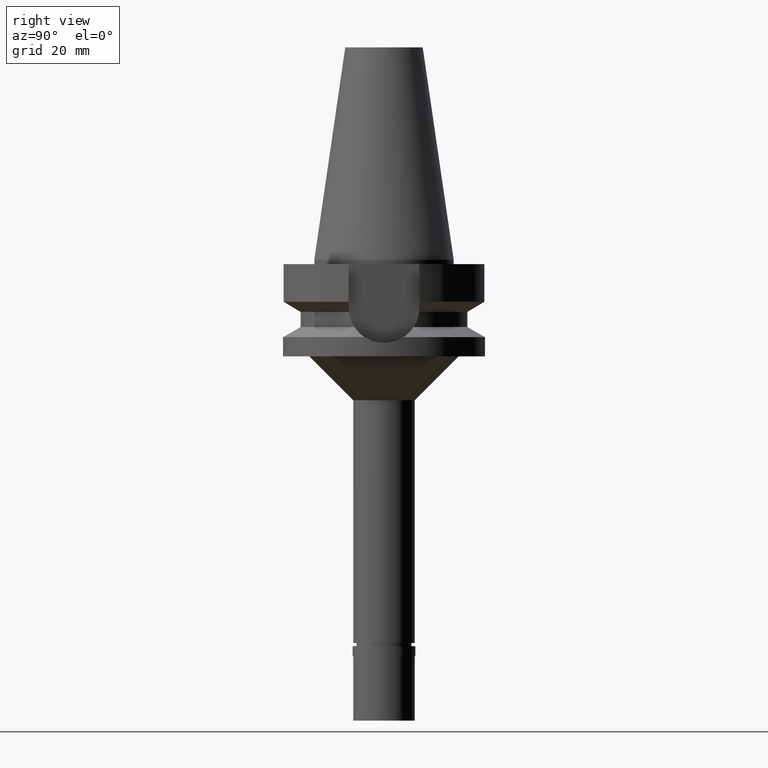
[diagram: clean part render]
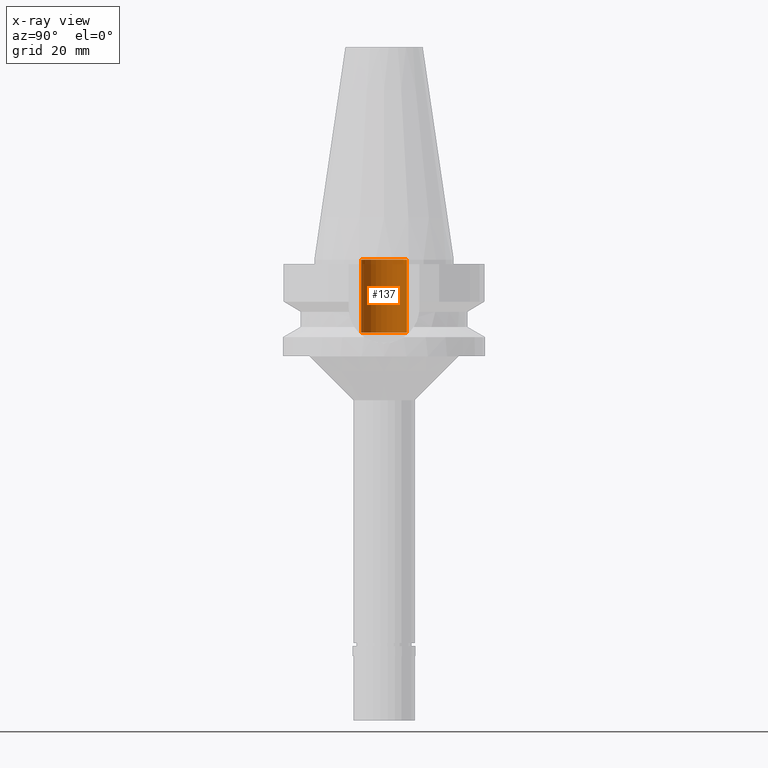
[diagram: x-ray — body ghosted, one internal face saturated and labeled with its STEP entity id]
A machine part, right view, then the same camera in x-ray: the body is ghosted and one INTERNAL B-rep face — a face not visible from any outside direction — is saturated and labeled: STEP entity #137.
In plain terms, the highlighted cylindrical surface (edge-blend (fillet) strip) has radius 5.2 mm, axis along (0, 0, -1).
Its self-contained STEP definition (entity closure, byte-faithful):
#25 = DIRECTION ( 'NONE',  ( 0.0000000000000000000, -1.000000000000000000, 0.0000000000000000000 ) ) ;
#74 = CARTESIAN_POINT ( 'NONE',  ( 0.0000000000000000000, 5.200000000000000178, -16.60000000000000142 ) ) ;
#116 = ORIENTED_EDGE ( 'NONE', *, *, #684, .T. ) ;
#137 = ADVANCED_FACE ( 'NONE', ( #1766 ), #1780, .F. ) ;
#260 = DIRECTION ( 'NONE',  ( 0.0000000000000000000, 0.0000000000000000000, -1.000000000000000000 ) ) ;
#350 = VERTEX_POINT ( 'NONE', #2289 ) ;
#358 = EDGE_CURVE ( 'NONE', #1214, #350, #931, .T. ) ;
#368 = CIRCLE ( 'NONE', #1207, 5.200000000000000178 ) ;
#504 = VECTOR ( 'NONE', #926, 1000.000000000000000 ) ;
#569 = ORIENTED_EDGE ( 'NONE', *, *, #2679, .T. ) ;
#639 = VERTEX_POINT ( 'NONE', #924 ) ;
#684 = EDGE_CURVE ( 'NONE', #1214, #639, #1169, .T. ) ;
#691 = DIRECTION ( 'NONE',  ( 0.0000000000000000000, 0.0000000000000000000, -1.000000000000000000 ) ) ;
#924 = CARTESIAN_POINT ( 'NONE',  ( 0.0000000000000000000, 5.200000000000000178, -16.60000000000000142 ) ) ;
#926 = DIRECTION ( 'NONE',  ( 0.0000000000000000000, 0.0000000000000000000, 1.000000000000000000 ) ) ;
#931 = LINE ( 'NONE', #2736, #1729 ) ;
#1078 = CARTESIAN_POINT ( 'NONE',  ( 0.0000000000000000000, 1.908856965831000054E-14, 55.87000000000000455 ) ) ;
#1169 = CIRCLE ( 'NONE', #1888, 5.200000000000000178 ) ;
#1176 = LINE ( 'NONE', #74, #504 ) ;
#1207 = AXIS2_PLACEMENT_3D ( 'NONE', #2843, #1329, #1779 ) ;
#1214 = VERTEX_POINT ( 'NONE', #2164 ) ;
#1329 = DIRECTION ( 'NONE',  ( 0.0000000000000000000, 0.0000000000000000000, -1.000000000000000000 ) ) ;
#1374 = CARTESIAN_POINT ( 'NONE',  ( 0.0000000000000000000, 5.200000000000000178, 9.237055564880999494E-14 ) ) ;
#1448 = VERTEX_POINT ( 'NONE', #1374 ) ;
#1697 = EDGE_CURVE ( 'NONE', #350, #1448, #368, .T. ) ;
#1729 = VECTOR ( 'NONE', #2091, 1000.000000000000000 ) ;
#1766 = FACE_OUTER_BOUND ( 'NONE', #2852, .T. ) ;
#1779 = DIRECTION ( 'NONE',  ( 0.0000000000000000000, -1.000000000000000000, 0.0000000000000000000 ) ) ;
#1780 = CYLINDRICAL_SURFACE ( 'NONE', #2662, 5.200000000000000178 ) ;
#1888 = AXIS2_PLACEMENT_3D ( 'NONE', #2265, #260, #2724 ) ;
#2091 = DIRECTION ( 'NONE',  ( 0.0000000000000000000, 0.0000000000000000000, 1.000000000000000000 ) ) ;
#2164 = CARTESIAN_POINT ( 'NONE',  ( 0.0000000000000000000, -5.200000000000000178, -16.60000000000000142 ) ) ;
#2265 = CARTESIAN_POINT ( 'NONE',  ( 0.0000000000000000000, 1.908856965831000054E-14, -16.60000000000000142 ) ) ;
#2289 = CARTESIAN_POINT ( 'NONE',  ( 0.0000000000000000000, -5.200000000000000178, 9.237055564880999494E-14 ) ) ;
#2301 = ORIENTED_EDGE ( 'NONE', *, *, #1697, .F. ) ;
#2619 = ORIENTED_EDGE ( 'NONE', *, *, #358, .F. ) ;
#2662 = AXIS2_PLACEMENT_3D ( 'NONE', #1078, #691, #25 ) ;
#2679 = EDGE_CURVE ( 'NONE', #639, #1448, #1176, .T. ) ;
#2724 = DIRECTION ( 'NONE',  ( 0.0000000000000000000, -1.000000000000000000, 0.0000000000000000000 ) ) ;
#2736 = CARTESIAN_POINT ( 'NONE',  ( 0.0000000000000000000, -5.200000000000000178, -16.60000000000000142 ) ) ;
#2843 = CARTESIAN_POINT ( 'NONE',  ( 0.0000000000000000000, 1.908856965831000054E-14, 9.947598300640998705E-14 ) ) ;
#2852 = EDGE_LOOP ( 'NONE', ( #2301, #2619, #116, #569 ) ) ;